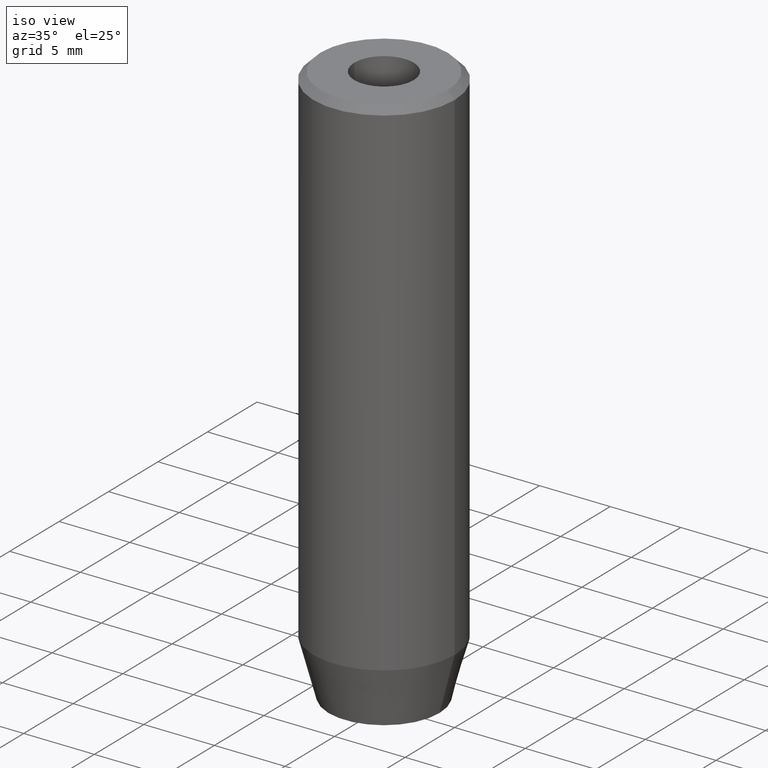
[diagram: clean part render]
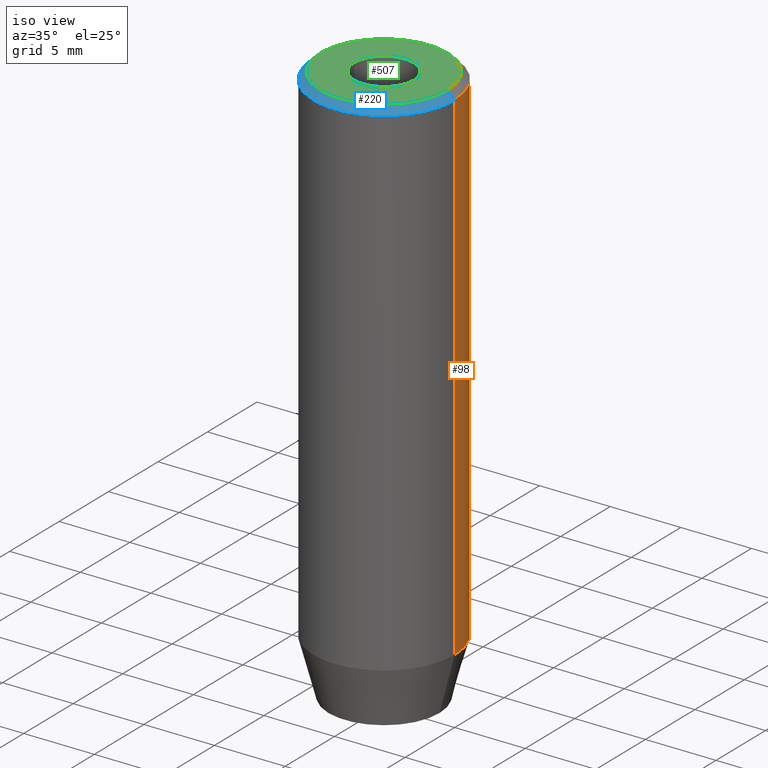
[diagram: same view with three faces highlighted in distinct colors, each labeled with its STEP entity id]
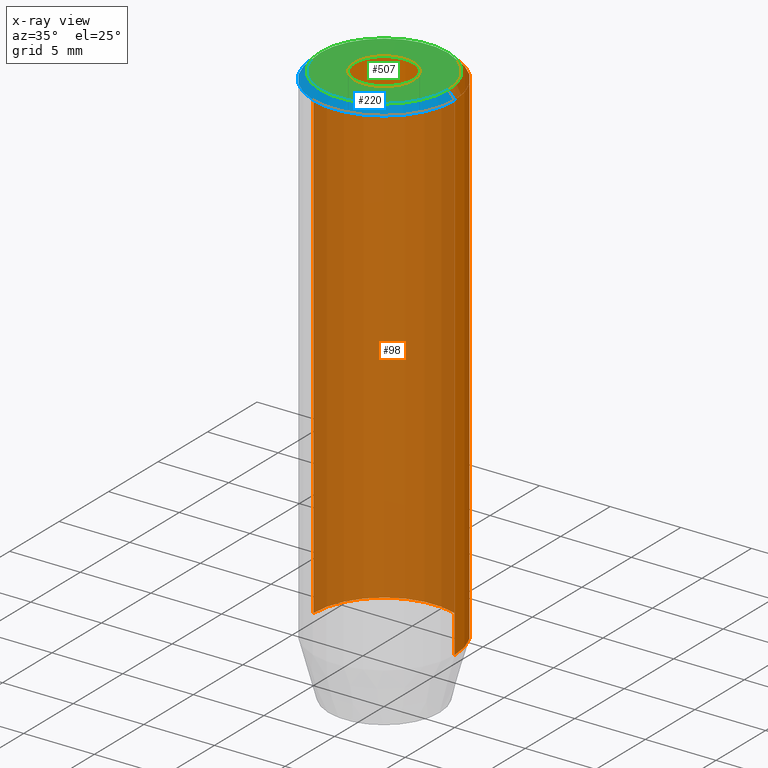
[diagram: x-ray of the same camera — body ghosted, the three highlighted faces saturated]
A machine part, iso view with three faces highlighted in distinct colors.
The next image is the same camera in x-ray (body ghosted, the three faces saturated) — at least one of them is partly hidden behind the body in this view.
Their STEP definitions:

[orange] entity #98 — the highlighted cylindrical surface (partial cylindrical patch) has radius 5 mm, axis along (-0, -0, 1).
#1 = EDGE_CURVE ( 'NONE', #580, #581, #550, .T. ) ;
#37 = VERTEX_POINT ( 'NONE', #323 ) ;
#56 = AXIS2_PLACEMENT_3D ( 'NONE', #530, #303, #351 ) ;
#64 = CARTESIAN_POINT ( 'NONE',  ( 0.000000000000000000, 0.000000000000000000, -0.4999999999999935052 ) ) ;
#78 = VECTOR ( 'NONE', #492, 1000.000000000000000 ) ;
#84 = DIRECTION ( 'NONE',  ( -0.000000000000000000, -0.000000000000000000, 1.000000000000000000 ) ) ;
#98 = ADVANCED_FACE ( 'NONE', ( #271 ), #222, .T. ) ;
#115 = VECTOR ( 'NONE', #84, 1000.000000000000000 ) ;
#187 = CARTESIAN_POINT ( 'NONE',  ( -5.000000000000000888, 6.123233995736767268E-16, -0.4999999999999935052 ) ) ;
#216 = VERTEX_POINT ( 'NONE', #428 ) ;
#222 = CYLINDRICAL_SURFACE ( 'NONE', #561, 5.000000000000000888 ) ;
#223 = EDGE_CURVE ( 'NONE', #216, #581, #259, .T. ) ;
#257 = CARTESIAN_POINT ( 'NONE',  ( -5.000000000000000888, 6.123233995736767268E-16, 0.000000000000000000 ) ) ;
#259 = LINE ( 'NONE', #480, #78 ) ;
#262 = EDGE_LOOP ( 'NONE', ( #324, #584, #307, #548 ) ) ;
#271 = FACE_OUTER_BOUND ( 'NONE', #262, .T. ) ;
#272 = EDGE_CURVE ( 'NONE', #37, #580, #300, .T. ) ;
#295 = EDGE_CURVE ( 'NONE', #216, #37, #570, .T. ) ;
#300 = LINE ( 'NONE', #257, #115 ) ;
#303 = DIRECTION ( 'NONE',  ( -0.000000000000000000, -0.000000000000000000, 1.000000000000000000 ) ) ;
#307 = ORIENTED_EDGE ( 'NONE', *, *, #1, .T. ) ;
#323 = CARTESIAN_POINT ( 'NONE',  ( -5.000000000000000888, 6.123233995736767268E-16, -36.00000000000000711 ) ) ;
#324 = ORIENTED_EDGE ( 'NONE', *, *, #295, .T. ) ;
#327 = DIRECTION ( 'NONE',  ( 1.000000000000000000, 0.000000000000000000, 0.000000000000000000 ) ) ;
#351 = DIRECTION ( 'NONE',  ( 1.000000000000000000, 0.000000000000000000, 0.000000000000000000 ) ) ;
#419 = DIRECTION ( 'NONE',  ( -0.000000000000000000, -0.000000000000000000, 1.000000000000000000 ) ) ;
#425 = DIRECTION ( 'NONE',  ( 1.000000000000000000, 0.000000000000000000, 0.000000000000000000 ) ) ;
#428 = CARTESIAN_POINT ( 'NONE',  ( 5.000000000000000888, 0.000000000000000000, -36.00000000000000711 ) ) ;
#446 = AXIS2_PLACEMENT_3D ( 'NONE', #64, #464, #327 ) ;
#464 = DIRECTION ( 'NONE',  ( 0.000000000000000000, 0.000000000000000000, -1.000000000000000000 ) ) ;
#480 = CARTESIAN_POINT ( 'NONE',  ( 5.000000000000000888, 0.000000000000000000, 0.000000000000000000 ) ) ;
#492 = DIRECTION ( 'NONE',  ( -0.000000000000000000, -0.000000000000000000, 1.000000000000000000 ) ) ;
#503 = CARTESIAN_POINT ( 'NONE',  ( 5.000000000000000888, 0.000000000000000000, -0.4999999999999935052 ) ) ;
#530 = CARTESIAN_POINT ( 'NONE',  ( 0.000000000000000000, 0.000000000000000000, -36.00000000000000711 ) ) ;
#548 = ORIENTED_EDGE ( 'NONE', *, *, #223, .F. ) ;
#550 = CIRCLE ( 'NONE', #446, 5.000000000000000888 ) ;
#561 = AXIS2_PLACEMENT_3D ( 'NONE', #565, #419, #425 ) ;
#565 = CARTESIAN_POINT ( 'NONE',  ( 0.000000000000000000, 0.000000000000000000, 0.000000000000000000 ) ) ;
#570 = CIRCLE ( 'NONE', #56, 5.000000000000000888 ) ;
#580 = VERTEX_POINT ( 'NONE', #187 ) ;
#581 = VERTEX_POINT ( 'NONE', #503 ) ;
#584 = ORIENTED_EDGE ( 'NONE', *, *, #272, .T. ) ;

[blue] entity #220 — the highlighted conical surface has half-angle 45 deg.
#14 = DIRECTION ( 'NONE',  ( -0.7071067811865500152, 0.000000000000000000, -0.7071067811865451302 ) ) ;
#23 = DIRECTION ( 'NONE',  ( 0.000000000000000000, 0.000000000000000000, -1.000000000000000000 ) ) ;
#31 = EDGE_CURVE ( 'NONE', #544, #581, #51, .T. ) ;
#45 = ORIENTED_EDGE ( 'NONE', *, *, #542, .F. ) ;
#51 = LINE ( 'NONE', #229, #287 ) ;
#53 = DIRECTION ( 'NONE',  ( -0.000000000000000000, -0.000000000000000000, 1.000000000000000000 ) ) ;
#104 = DIRECTION ( 'NONE',  ( 1.000000000000000000, 0.000000000000000000, 0.000000000000000000 ) ) ;
#107 = CARTESIAN_POINT ( 'NONE',  ( 4.500000000000003553, 5.817072295949930384E-16, 0.000000000000000000 ) ) ;
#109 = EDGE_CURVE ( 'NONE', #133, #580, #511, .T. ) ;
#110 = DIRECTION ( 'NONE',  ( 0.000000000000000000, 0.000000000000000000, -1.000000000000000000 ) ) ;
#133 = VERTEX_POINT ( 'NONE', #250 ) ;
#157 = AXIS2_PLACEMENT_3D ( 'NONE', #383, #23, #296 ) ;
#187 = CARTESIAN_POINT ( 'NONE',  ( -5.000000000000000888, 6.123233995736767268E-16, -0.4999999999999935052 ) ) ;
#198 = FACE_OUTER_BOUND ( 'NONE', #273, .T. ) ;
#220 = ADVANCED_FACE ( 'NONE', ( #198 ), #390, .T. ) ;
#229 = CARTESIAN_POINT ( 'NONE',  ( 4.500000000000003553, 5.510910596163094486E-16, 0.000000000000000000 ) ) ;
#250 = CARTESIAN_POINT ( 'NONE',  ( -4.500000000000003553, 0.000000000000000000, 0.000000000000000000 ) ) ;
#273 = EDGE_LOOP ( 'NONE', ( #401, #440, #359, #45 ) ) ;
#287 = VECTOR ( 'NONE', #552, 1000.000000000000114 ) ;
#289 = CARTESIAN_POINT ( 'NONE',  ( -4.500000000000003553, 0.000000000000000000, 0.000000000000000000 ) ) ;
#296 = DIRECTION ( 'NONE',  ( -1.000000000000000000, 0.000000000000000000, 0.000000000000000000 ) ) ;
#322 = CARTESIAN_POINT ( 'NONE',  ( 0.000000000000000000, 0.000000000000000000, 0.000000000000000000 ) ) ;
#359 = ORIENTED_EDGE ( 'NONE', *, *, #109, .T. ) ;
#364 = VECTOR ( 'NONE', #14, 1000.000000000000114 ) ;
#383 = CARTESIAN_POINT ( 'NONE',  ( 0.000000000000000000, 0.000000000000000000, 0.000000000000000000 ) ) ;
#386 = AXIS2_PLACEMENT_3D ( 'NONE', #322, #53, #104 ) ;
#390 = CONICAL_SURFACE ( 'NONE', #157, 4.500000000000003553, 0.7853981633974517207 ) ;
#395 = DIRECTION ( 'NONE',  ( 1.000000000000000000, 0.000000000000000000, 0.000000000000000000 ) ) ;
#401 = ORIENTED_EDGE ( 'NONE', *, *, #31, .F. ) ;
#440 = ORIENTED_EDGE ( 'NONE', *, *, #582, .F. ) ;
#484 = CARTESIAN_POINT ( 'NONE',  ( 0.000000000000000000, 0.000000000000000000, -0.4999999999999935052 ) ) ;
#503 = CARTESIAN_POINT ( 'NONE',  ( 5.000000000000000888, 0.000000000000000000, -0.4999999999999935052 ) ) ;
#511 = LINE ( 'NONE', #289, #364 ) ;
#526 = CIRCLE ( 'NONE', #386, 4.500000000000003553 ) ;
#537 = CIRCLE ( 'NONE', #586, 5.000000000000000888 ) ;
#542 = EDGE_CURVE ( 'NONE', #581, #580, #537, .T. ) ;
#544 = VERTEX_POINT ( 'NONE', #107 ) ;
#552 = DIRECTION ( 'NONE',  ( 0.7071067811865500152, 8.659560562354963673E-17, -0.7071067811865451302 ) ) ;
#580 = VERTEX_POINT ( 'NONE', #187 ) ;
#581 = VERTEX_POINT ( 'NONE', #503 ) ;
#582 = EDGE_CURVE ( 'NONE', #133, #544, #526, .T. ) ;
#586 = AXIS2_PLACEMENT_3D ( 'NONE', #484, #110, #395 ) ;

[green] entity #507 — the highlighted planar face has unit normal (0, -0, 1).
#36 = PLANE ( 'NONE',  #305 ) ;
#53 = DIRECTION ( 'NONE',  ( -0.000000000000000000, -0.000000000000000000, 1.000000000000000000 ) ) ;
#55 = CARTESIAN_POINT ( 'NONE',  ( -2.099999999999998757, 2.571758278209439985E-16, -1.990051048614449116E-16 ) ) ;
#79 = CIRCLE ( 'NONE', #482, 2.099999999999998757 ) ;
#81 = DIRECTION ( 'NONE',  ( -0.000000000000000000, -0.000000000000000000, 1.000000000000000000 ) ) ;
#102 = ORIENTED_EDGE ( 'NONE', *, *, #582, .T. ) ;
#104 = DIRECTION ( 'NONE',  ( 1.000000000000000000, 0.000000000000000000, 0.000000000000000000 ) ) ;
#107 = CARTESIAN_POINT ( 'NONE',  ( 4.500000000000003553, 5.817072295949930384E-16, 0.000000000000000000 ) ) ;
#130 = ORIENTED_EDGE ( 'NONE', *, *, #513, .F. ) ;
#133 = VERTEX_POINT ( 'NONE', #250 ) ;
#137 = AXIS2_PLACEMENT_3D ( 'NONE', #535, #217, #441 ) ;
#210 = DIRECTION ( 'NONE',  ( 1.000000000000000000, 0.000000000000000000, 0.000000000000000000 ) ) ;
#212 = EDGE_LOOP ( 'NONE', ( #102, #502 ) ) ;
#217 = DIRECTION ( 'NONE',  ( -0.000000000000000000, -0.000000000000000000, 1.000000000000000000 ) ) ;
#221 = ORIENTED_EDGE ( 'NONE', *, *, #298, .F. ) ;
#250 = CARTESIAN_POINT ( 'NONE',  ( -4.500000000000003553, 0.000000000000000000, 0.000000000000000000 ) ) ;
#260 = VERTEX_POINT ( 'NONE', #55 ) ;
#275 = DIRECTION ( 'NONE',  ( 0.000000000000000000, -0.000000000000000000, 1.000000000000000000 ) ) ;
#298 = EDGE_CURVE ( 'NONE', #316, #260, #385, .T. ) ;
#305 = AXIS2_PLACEMENT_3D ( 'NONE', #328, #275, #210 ) ;
#306 = DIRECTION ( 'NONE',  ( 1.000000000000000000, 0.000000000000000000, 0.000000000000000000 ) ) ;
#311 = CARTESIAN_POINT ( 'NONE',  ( 2.099999999999998757, 0.000000000000000000, -1.990051048614449116E-16 ) ) ;
#316 = VERTEX_POINT ( 'NONE', #311 ) ;
#322 = CARTESIAN_POINT ( 'NONE',  ( 0.000000000000000000, 0.000000000000000000, 0.000000000000000000 ) ) ;
#328 = CARTESIAN_POINT ( 'NONE',  ( 0.000000000000000000, 0.000000000000000000, 0.000000000000000000 ) ) ;
#338 = CIRCLE ( 'NONE', #563, 4.500000000000003553 ) ;
#368 = FACE_BOUND ( 'NONE', #415, .T. ) ;
#385 = CIRCLE ( 'NONE', #137, 2.099999999999998757 ) ;
#386 = AXIS2_PLACEMENT_3D ( 'NONE', #322, #53, #104 ) ;
#415 = EDGE_LOOP ( 'NONE', ( #221, #130 ) ) ;
#436 = DIRECTION ( 'NONE',  ( 1.000000000000000000, 0.000000000000000000, 0.000000000000000000 ) ) ;
#441 = DIRECTION ( 'NONE',  ( 1.000000000000000000, 0.000000000000000000, 0.000000000000000000 ) ) ;
#461 = EDGE_CURVE ( 'NONE', #544, #133, #338, .T. ) ;
#482 = AXIS2_PLACEMENT_3D ( 'NONE', #562, #531, #306 ) ;
#502 = ORIENTED_EDGE ( 'NONE', *, *, #461, .T. ) ;
#504 = FACE_OUTER_BOUND ( 'NONE', #212, .T. ) ;
#507 = ADVANCED_FACE ( 'NONE', ( #368, #504 ), #36, .T. ) ;
#513 = EDGE_CURVE ( 'NONE', #260, #316, #79, .T. ) ;
#514 = CARTESIAN_POINT ( 'NONE',  ( 0.000000000000000000, 0.000000000000000000, 0.000000000000000000 ) ) ;
#526 = CIRCLE ( 'NONE', #386, 4.500000000000003553 ) ;
#531 = DIRECTION ( 'NONE',  ( -0.000000000000000000, -0.000000000000000000, 1.000000000000000000 ) ) ;
#535 = CARTESIAN_POINT ( 'NONE',  ( 0.000000000000000000, 0.000000000000000000, -1.990051048614449116E-16 ) ) ;
#544 = VERTEX_POINT ( 'NONE', #107 ) ;
#562 = CARTESIAN_POINT ( 'NONE',  ( 0.000000000000000000, 0.000000000000000000, -1.990051048614449116E-16 ) ) ;
#563 = AXIS2_PLACEMENT_3D ( 'NONE', #514, #81, #436 ) ;
#582 = EDGE_CURVE ( 'NONE', #133, #544, #526, .T. ) ;